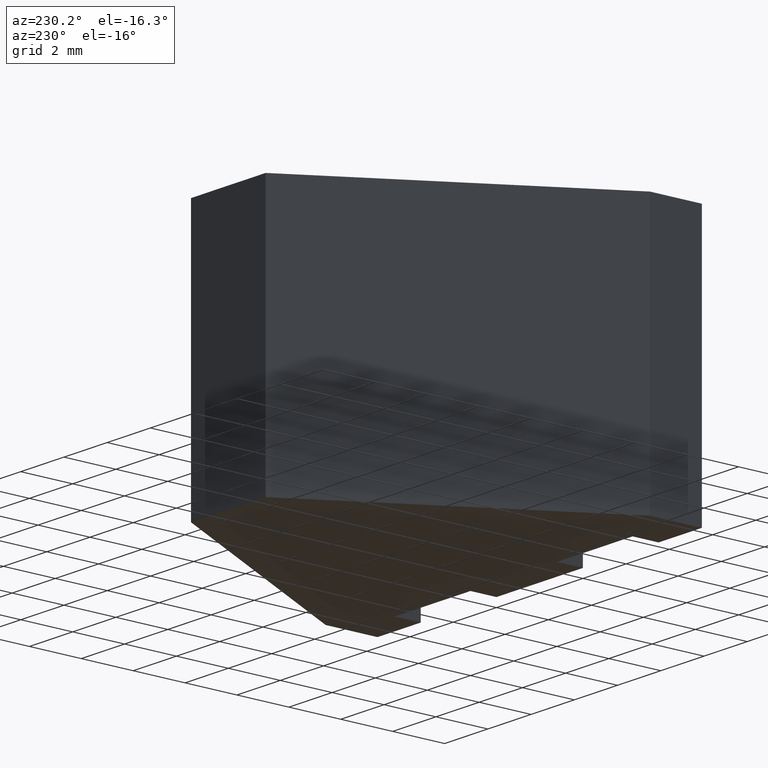
[diagram: clean part render]
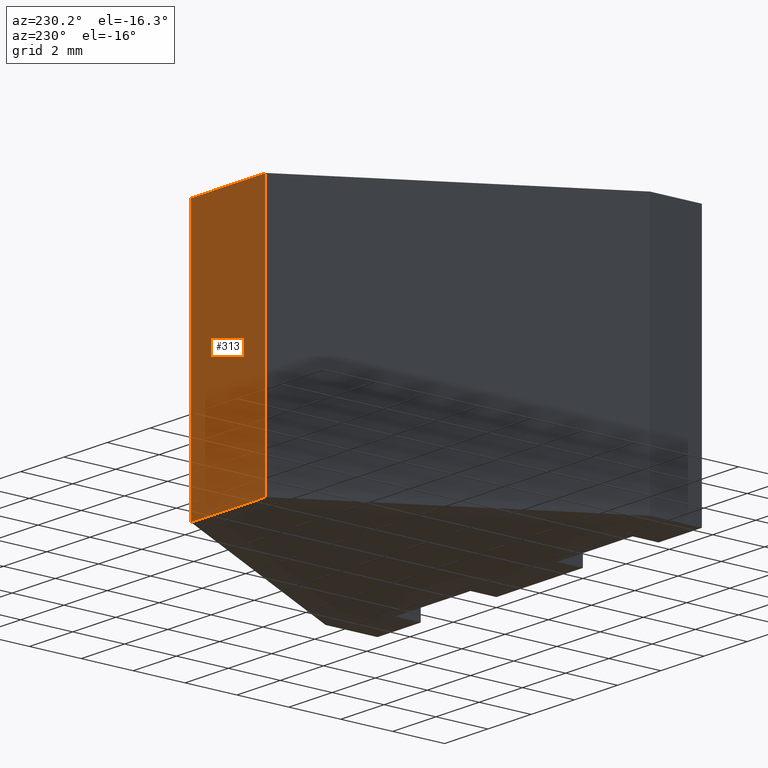
[diagram: same view with one face highlighted and labeled with its STEP entity id]
A machine part, auxiliary view. The second image highlights one B-rep face of the part: STEP entity #313.
In plain terms, the highlighted planar face has unit normal (0, 1, 0).
Its self-contained STEP definition (entity closure, byte-faithful):
#27=FACE_OUTER_BOUND('',#43,.T.);
#43=EDGE_LOOP('',(#256,#257,#258,#259));
#60=LINE('',#461,#102);
#82=LINE('',#504,#124);
#83=LINE('',#507,#125);
#84=LINE('',#508,#126);
#102=VECTOR('',#373,10.);
#124=VECTOR('',#415,10.);
#125=VECTOR('',#418,10.);
#126=VECTOR('',#419,10.);
#144=VERTEX_POINT('',#458);
#145=VERTEX_POINT('',#460);
#156=VERTEX_POINT('',#502);
#157=VERTEX_POINT('',#506);
#172=EDGE_CURVE('',#145,#144,#60,.T.);
#194=EDGE_CURVE('',#156,#144,#82,.T.);
#195=EDGE_CURVE('',#156,#157,#83,.T.);
#196=EDGE_CURVE('',#157,#145,#84,.T.);
#256=ORIENTED_EDGE('',*,*,#195,.T.);
#257=ORIENTED_EDGE('',*,*,#196,.T.);
#258=ORIENTED_EDGE('',*,*,#172,.T.);
#259=ORIENTED_EDGE('',*,*,#194,.F.);
#297=PLANE('',#352);
#313=ADVANCED_FACE('',(#27),#297,.T.);
#352=AXIS2_PLACEMENT_3D('',#505,#416,#417);
#373=DIRECTION('',(-1.,0.,0.));
#415=DIRECTION('',(0.,0.,-1.));
#416=DIRECTION('center_axis',(0.,1.,0.));
#417=DIRECTION('ref_axis',(0.,0.,1.));
#418=DIRECTION('',(1.,0.,0.));
#419=DIRECTION('',(0.,0.,-1.));
#458=CARTESIAN_POINT('',(-1.72649730810374,12.,-5.));
#460=CARTESIAN_POINT('',(1.72649730810374,12.,-5.));
#461=CARTESIAN_POINT('',(-1.72649730810374,12.,-5.));
#502=CARTESIAN_POINT('',(-1.72649730810374,12.,5.));
#504=CARTESIAN_POINT('',(-1.72649730810374,12.,0.));
#505=CARTESIAN_POINT('Origin',(-1.72649730810374,12.,0.));
#506=CARTESIAN_POINT('',(1.72649730810374,12.,5.));
#507=CARTESIAN_POINT('',(-1.72649730810374,12.,5.));
#508=CARTESIAN_POINT('',(1.72649730810374,12.,0.));